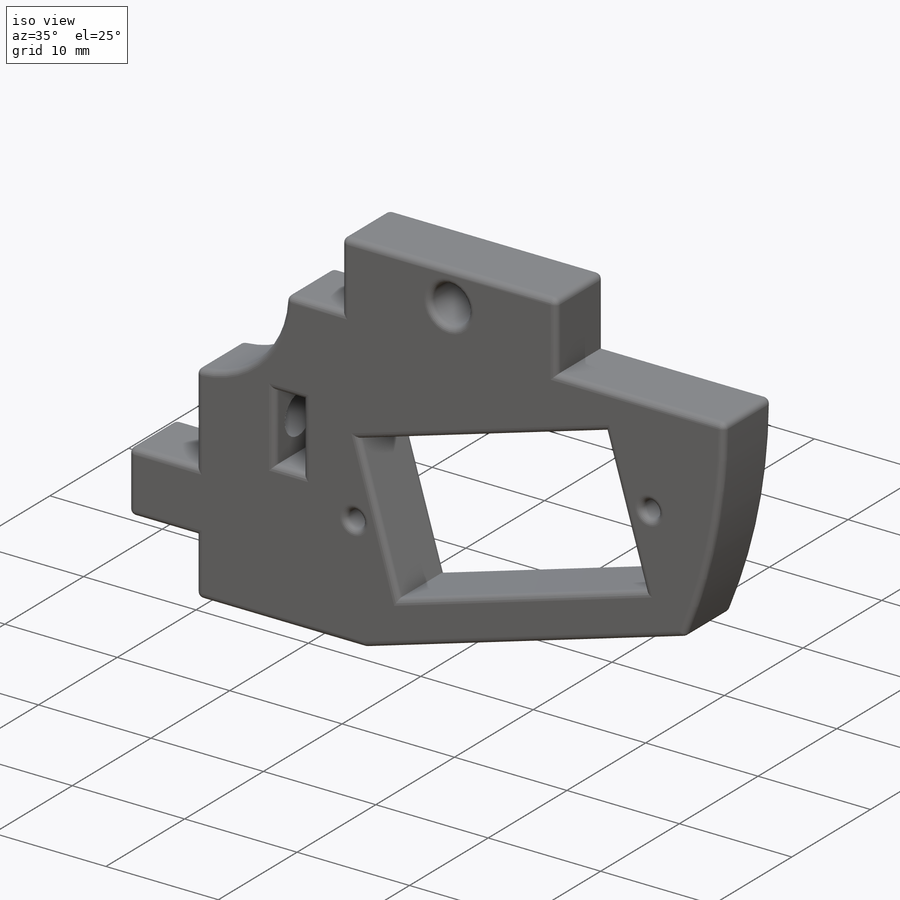
[diagram: iso view]
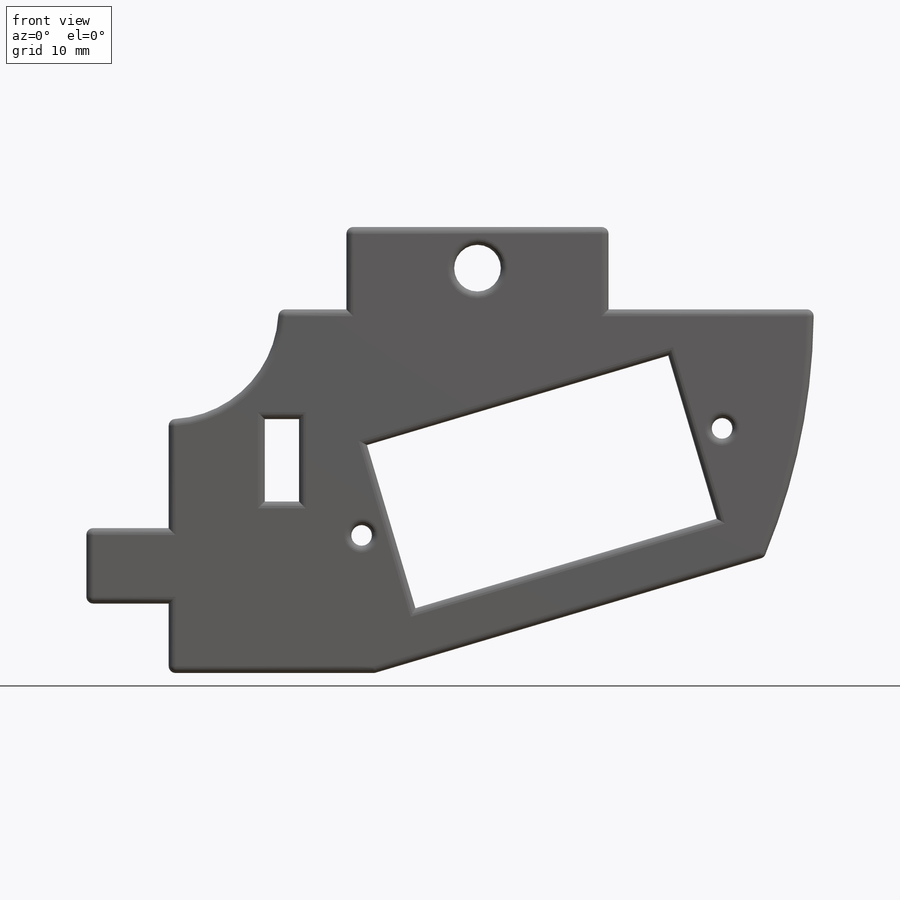
[diagram: front view]
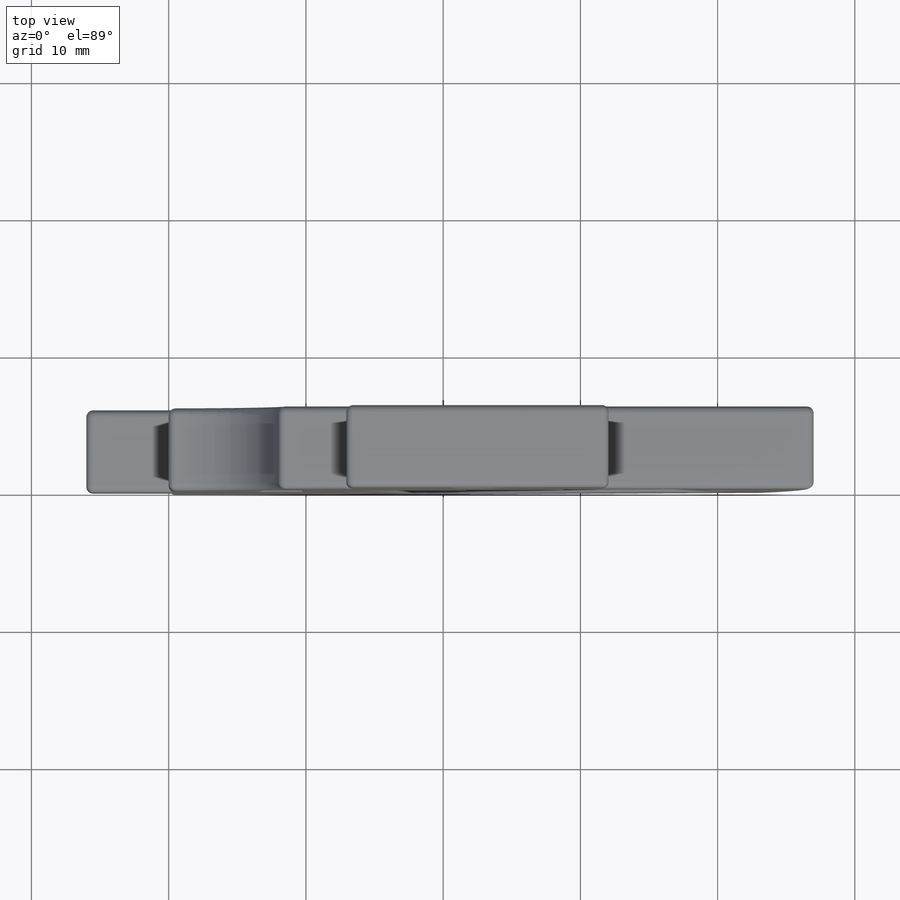
[diagram: top view]
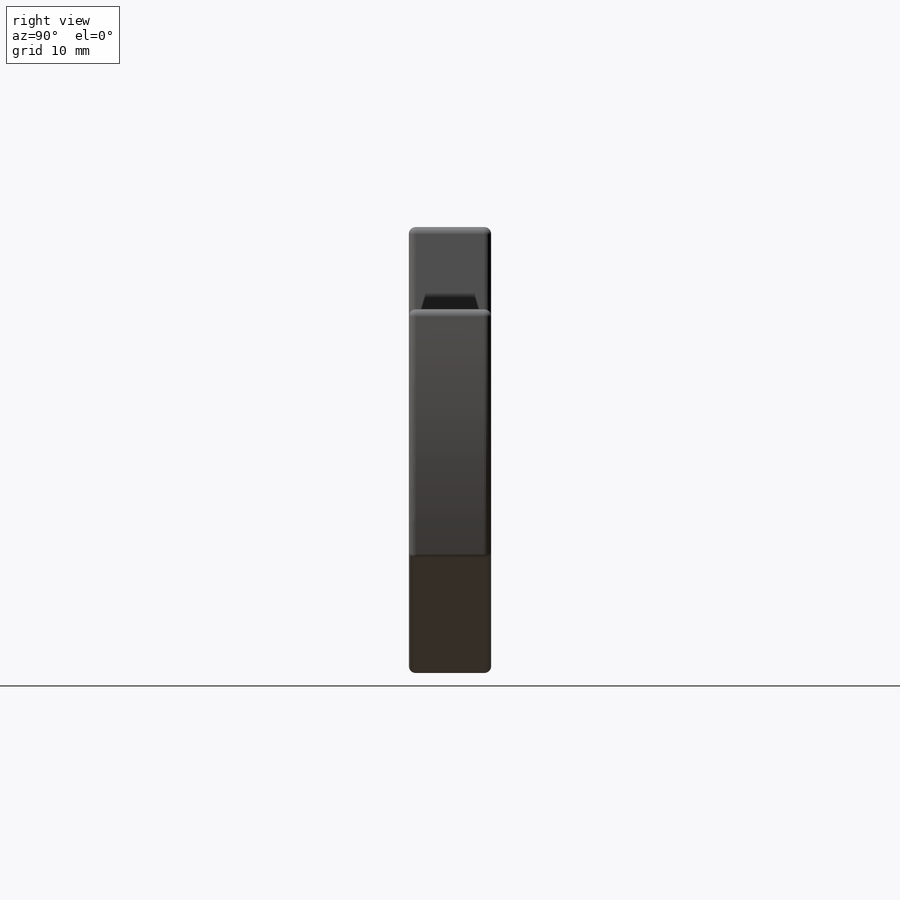
[diagram: right view]
SOLIDWORKS PART (.sldprt)
format: sldprt  version: not decoded by parser v0  size: 820,736 bytes
history: native  units: mm
features: sketch x8, cut_extrude x5, extrude x3, material x1, plane x1, fillet x1 (+12 scaffold rows collapsed)
feature tree (31):
  scaffold x12  (default folders/planes/origin — collapsed)
  material  "Material <not specified>"
  sketch  "Sketch1"  dims[c1.D1=~35.727519mm c1.D2=73.1125mm c2.D1=26.5mm c2.D2=47.0mm c2.D3=15.0mm c2.D4=17.0mm]
  extrude  "Body"  Depth=6mm
  sketch  "Sketch2"  dims[c1.D1=6.0mm c1.D2=~17.048202mm c2.D1=0.6mm c2.D2=0.6mm]
  extrude  "Top Tab"  Depth=6mm
  sketch  "Sketch3"  dims[c1.D1=~5.050289mm c1.D2=6.0mm c2.D1=0.25mm c2.D2=0.25mm]
  extrude  "Back Tab"  Depth=6mm
  sketch  "Sketch5"  dims[D1=3.4mm]
  cut_extrude  "Back Screw Hole"  Depth=12mm
  plane  "Plane1"
  sketch  "Sketch4"  dims[c1.D1=3.4mm c1.D2=~6.101694mm c1.D3=~3.120688mm c2.D2=~6.101694mm c3.D2=90.0deg c4.D2=~6.101694mm c5.D2=90.0deg c6.D2=6.0mm c6.D3=2.5mm c6.D4=7.0mm]
  cut_extrude  "Screw and Nut Holes"  [1 undecoded]
  sketch  "Sketch7"  dims[D1=4.0mm D2=4.0mm]
  cut_extrude  "Switch Wire Relief"  [1 undecoded]
  sketch  "Sketch6"  dims[c1.D2=1.5mm c1.D3=1.5mm c1.D1=12.0mm c2.D2=22.5mm c2.D1=0.2mm]
  cut_extrude  "Servo Openings"  [1 undecoded]
  sketch  "Sketch10"  dims[D1=~9.699417mm]
  cut_extrude  "Rounded Corner"  [1 undecoded]
  fillet  "Fillet1"  Radius=0.5mm
decode coverage: 13 of 17 modeling features carry decoded parameters
note: ~ marks probable driven/reference dimensions
note: 4 parameter values undecoded
summary: no parameter record found for 4 features
note: suppression state not decoded; provenance and decode notes live in map.json
